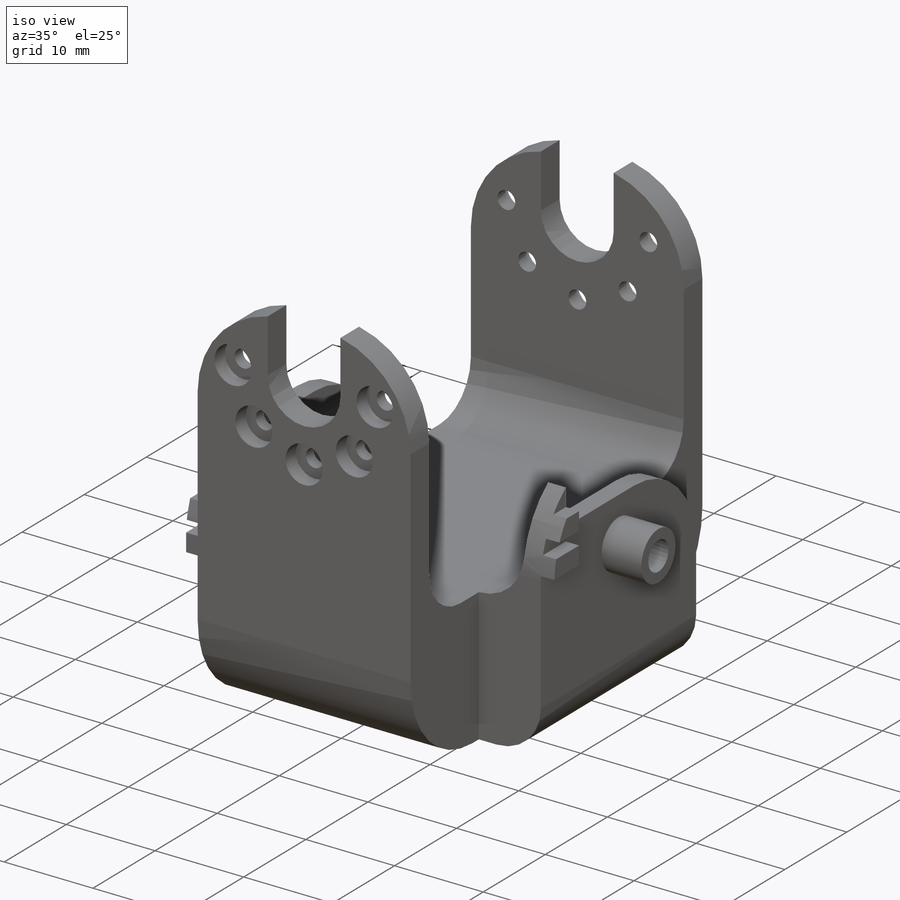
[diagram: iso view]
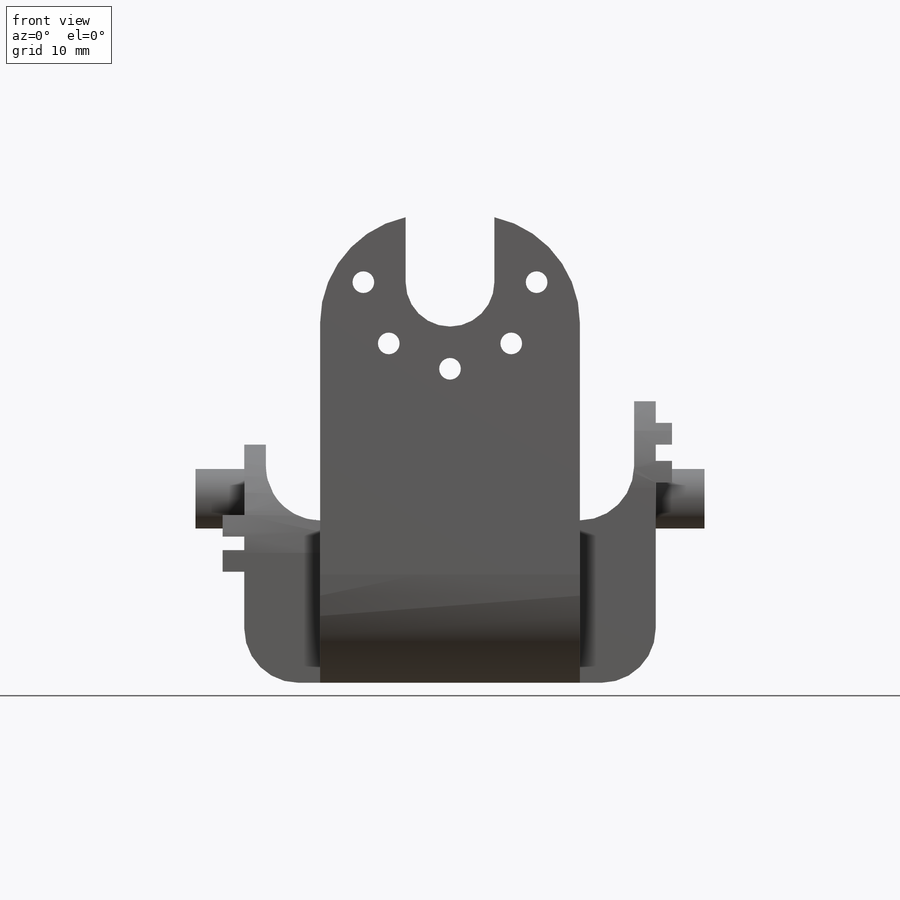
[diagram: front view]
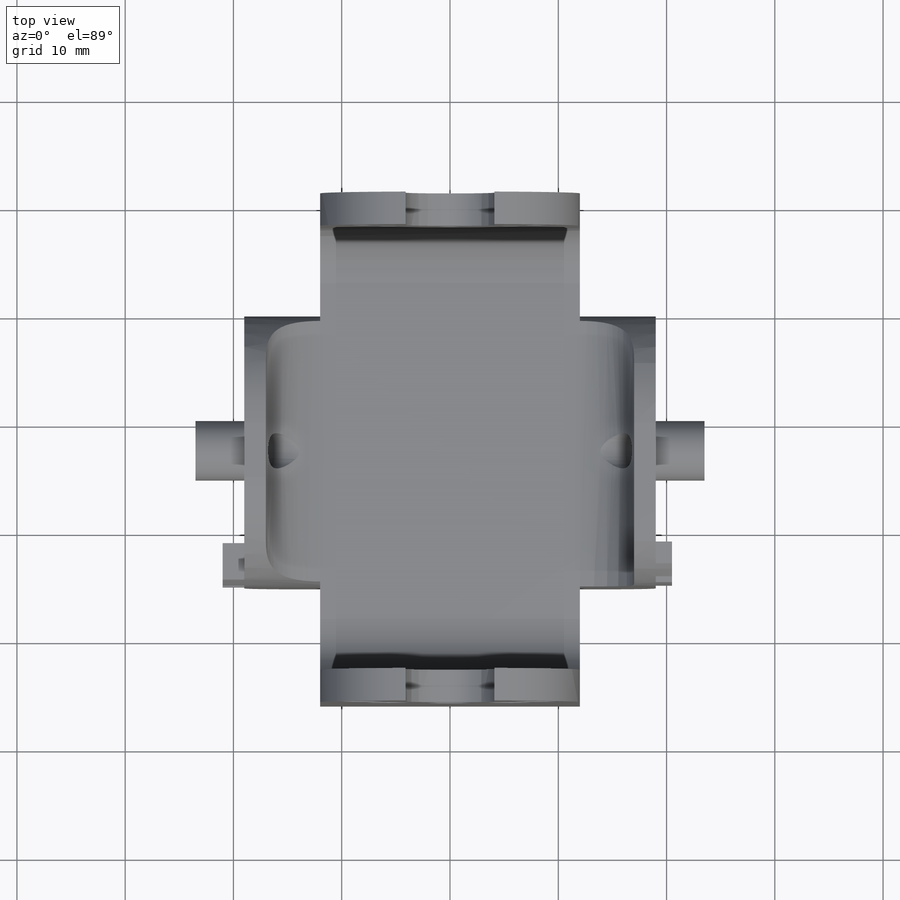
[diagram: top view]
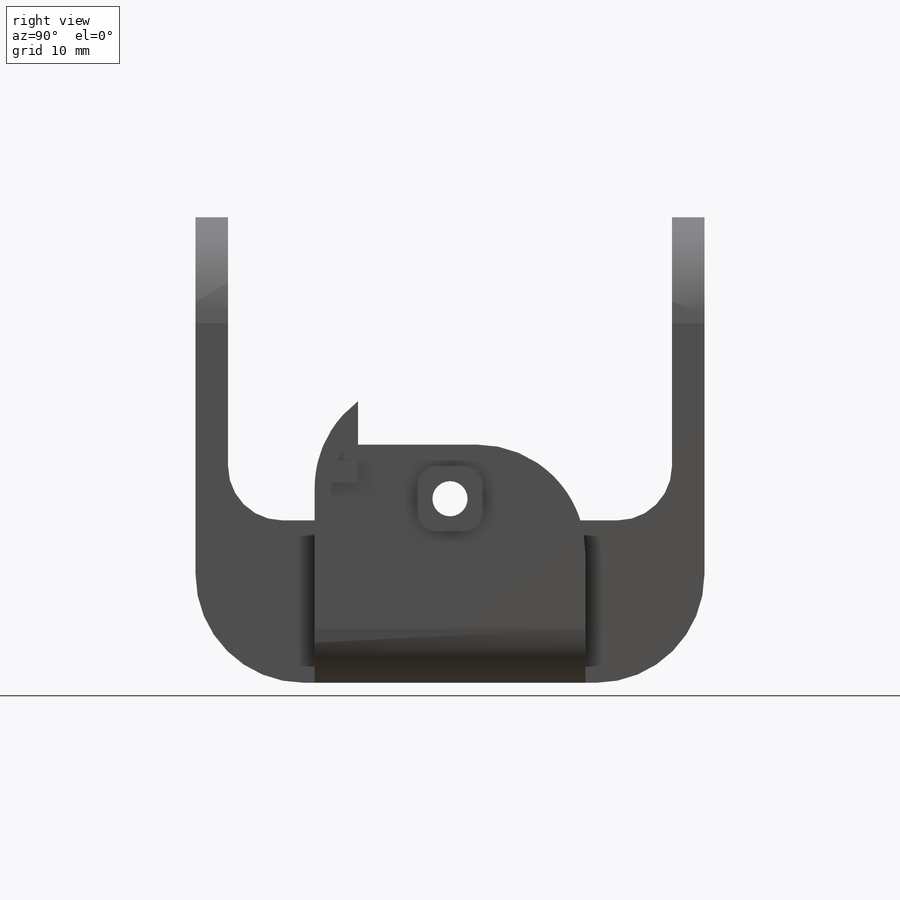
[diagram: right view]
SOLIDWORKS PART (.sldprt)
format: sldprt  version: not decoded by parser v0  size: 1,548,288 bytes
history: native  units: mm
features: sketch x23, extrude x16, fillet x10, cut_extrude x7, plane x5, mirror x5, material x1, delete_body x1 (+9 scaffold rows collapsed)
feature tree (77):
  scaffold x9  (default folders/planes/origin — collapsed)
  material  "Polyamide"
  plane  "Plan de face"
  plane  "Plan de dessus"
  plane  "Plan de droite"
  sketch  "Sketch1"  dims[D1=17.0mm D2=19.0mm D3=3.0mm D4=22.0mm]
  extrude  "Boss-Extrude1"  Depth=25mm
  sketch  "Sketch2"  dims[c1.D1=9.0mm c1.D3=8.2mm c1.D4=2.1mm c1.D6=2.1mm c1.D2=12.5mm c2.D3=5.0mm c2.D5=8.0mm c2.D6=8.0mm]
  cut_extrude  "Cut-Extrude1"  [1 undecoded]
  extrude  "Boss-Extrude7"  [1 undecoded]
  sketch  "Sketch2<2>"  dims[D1=4.5mm]
  sketch  "Sketch15"  dims[D1=2.6mm]
  extrude  "Boss-Extrude9"  Depth=5mm
  sketch  "Sketch3"  dims[D1=2.5mm D2=4.65mm]
  extrude  "Boss-Extrude2"  Depth=3mm
  sketch  "Sketch7"  dims[D1=1.0mm D2=2.0mm D3=2.0mm D4=1.0mm]
  extrude  "Boss-Extrude3"  Depth=2mm
  sketch  "Sketch12"  dims[D1=2.5mm D2=2.5mm]
  extrude  "Boss-Extrude6"  [1 undecoded]
  sketch  "Sketch8"  dims[D1=12.0mm]
  extrude  "Boss-Extrude4"  Depth=11mm
  sketch  "Sketch9"  dims[D1=3.0mm]
  extrude  "Boss-Extrude5"  Depth=40mm
  sketch  "Sketch10"  dims[c1.D1=4.1mm c1.D2=4.1mm c1.D3=2.0mm c1.D4=2.0mm c2.D2=4.1mm c2.D6=4.1mm c2.D7=4.1mm c2.D8=2.0mm c2.D9=1.0mm c3.D2=26.2mm c3.D4=8.0mm c4.D2=15.0mm c4.D6=8.0mm c4.D7=8.0mm c4.D8=8.0mm c4.D9=8.0mm c5.D2=37.0mm c5.D1=37.0mm]
  cut_extrude  "Cut-Extrude3"  [1 undecoded]
  plane  "Plane1"  Offset=12.5mm
  sketch  "Sketch11"  dims[D1=3.2mm D2=4.2mm D3=4.2mm D4=3.2mm D5=4.2mm]
  cut_extrude  "Cut-Extrude4"  Depth=1.7mm
  mirror  "Mirror3"
  mirror  "Mirror4"
  mirror  "Mirror2"
  mirror  "Mirror5"
  sketch  "Esquisse1"  dims[c1.D1=2.0mm c1.D2=2.0mm c1.D3=2.0mm c1.D4=2.0mm c1.D5=2.0mm c1.D6=2.0mm c1.D7=2.0mm c1.D8=2.0mm c2.D1=18.5mm c2.D2=7.0mm c2.D3=5.0mm c2.D4=5.0mm c2.D5=7.0mm c2.D6=5.0mm c2.D7=4.0mm c2.D8=4.0mm]
  cut_extrude  "Enlèv. mat.-Extru.1"  Depth=10mm
  fillet  "Congé1"  Radius=12.5mm
  sketch  "Sketch6"
  cut_extrude  "Cut-Extrude2"  [1 undecoded]
  fillet  "Fillet1"  Radius=6mm
  fillet  "Fillet2"  Radius=5mm
  fillet  "Fillet3"  Radius=1mm
  sketch  "Sketch13"  dims[c1.D1=2.0mm c1.D2=2.0mm c1.D3=2.0mm c1.D4=2.0mm c1.D5=2.0mm c1.D6=2.0mm c1.D7=2.0mm c2.D1=5.0mm c2.D2=7.0mm c2.D3=5.0mm c2.D5=4.0mm c2.D6=21.5mm c2.D7=5.0mm]
  cut_extrude  "Cut-Extrude5"  Depth=10mm
  fillet  "Fillet4"  Radius=10mm
  fillet  "Fillet5"  Radius=1mm
  sketch  "Sketch14"  dims[c1.D1=~9.064128mm c1.D2=~9.064128mm c1.D3=2.6mm c1.D4=6.0mm c2.D1=12.5mm c2.D2=5.0mm]
  extrude  "Boss-Extrude8"  Depth=9.5mm
  sketch  "Sketch16"  dims[c1.D2=6.0mm c1.D1=2.0mm c2.D2=5.5mm c2.D3=4.0mm c2.D4=2.0mm c2.D5=4.0mm c2.D6=1.5mm]
  extrude  "Boss-Extrude10"  Depth=2mm
  fillet  "Fillet6"  Radius=10mm
  sketch  "Sketch17"  dims[D1=16.0mm]
  extrude  "Boss-Extrude11"  Depth=5mm
  sketch  "Sketch18"  dims[c1.D1=9.0mm c1.D2=9.0mm c1.D3=9.0mm c2.D2=5.0mm c2.D3=12.5mm]
  extrude  "Boss-Extrude12"  Depth=4.5mm
  sketch  "Sketch19"  dims[D1=4.0mm]
  extrude  "Boss-Extrude13"  Depth=4mm
  sketch  "Sketch20"  dims[c1.D1=2.0mm c1.D2=2.0mm c1.D3=1.5mm c1.D4=3.5mm c1.D5=4.0mm c1.D6=4.0mm c2.D4=5.0mm]
  extrude  "Boss-Extrude14"  Depth=1.5mm
  sketch  "Esquisse2"
  extrude  "Boss.-Extru.1"  Depth=12mm
  sketch  "Sketch22"  dims[D1=3.25mm]
  cut_extrude  "Cut-Extrude6"  [1 undecoded]
  fillet  "Fillet7"  Radius=5mm
  fillet  "Fillet8"  Radius=10mm
  sketch  "Sketch21"  dims[D1=14.0mm]
  extrude  "Boss-Extrude15"  Depth=4mm
  plane  "Plane2"  Offset=50mm
  mirror  "Mirror6"
  delete_body  "Body-Delete1"
  fillet  "Fillet9"  Radius=5mm
decode coverage: 48 of 62 modeling features carry decoded parameters
note: ~ marks probable driven/reference dimensions
note: 6 parameter values undecoded
summary: no parameter record found for 6 features
note: suppression state not decoded; provenance and decode notes live in map.json
